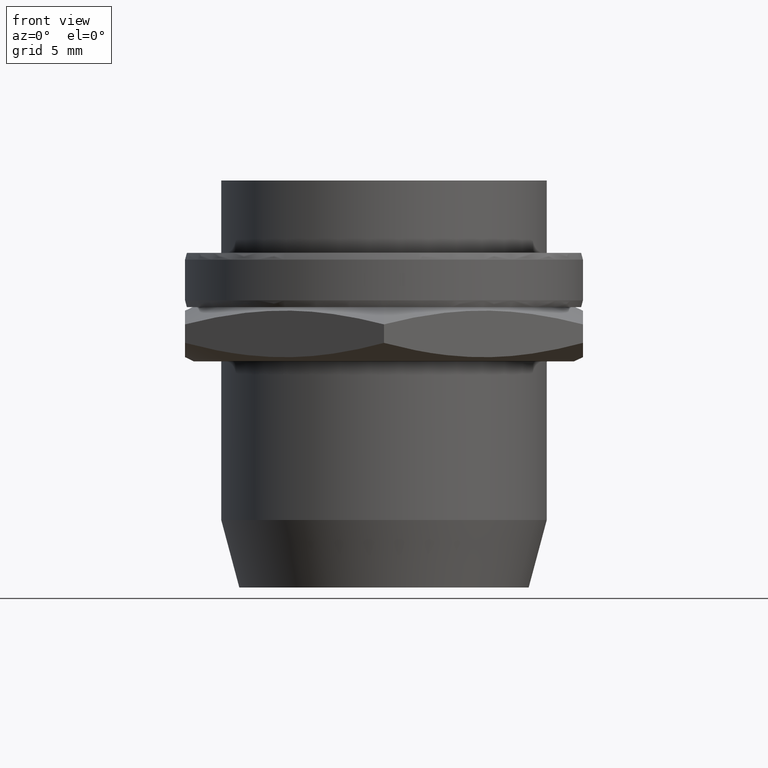
[diagram: clean part render]
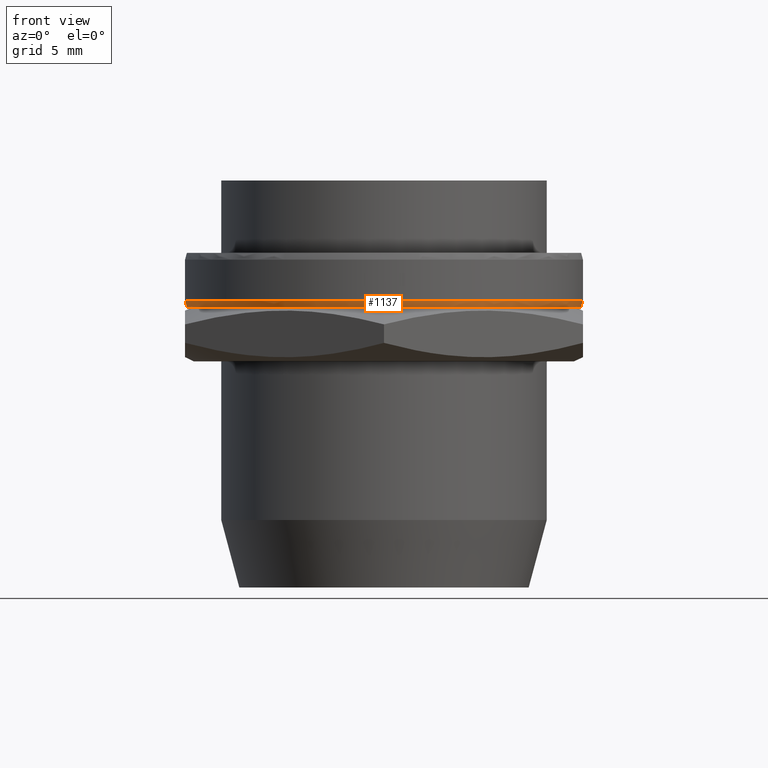
[diagram: same view with one face highlighted and labeled with its STEP entity id]
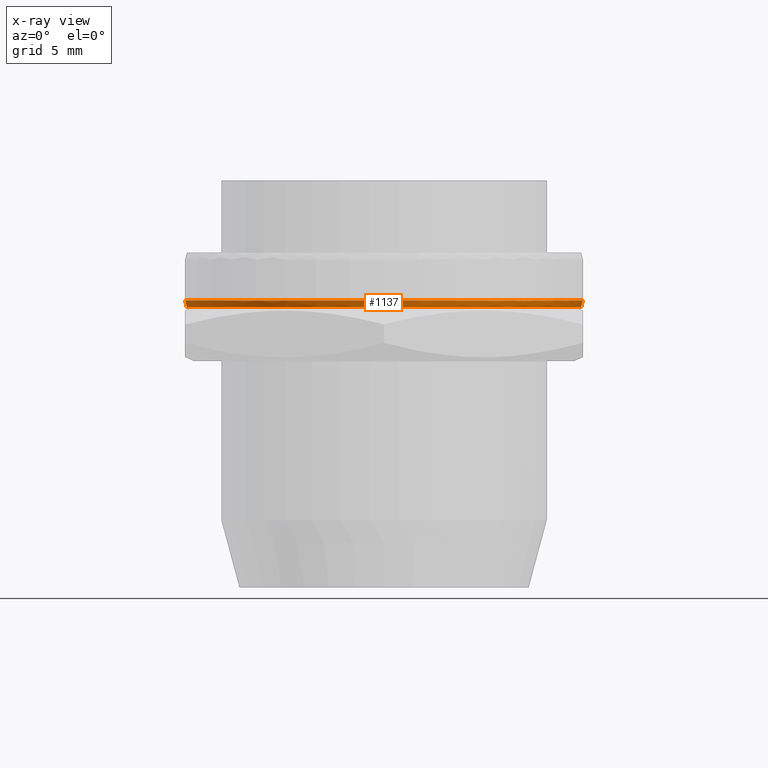
[diagram: x-ray of the same camera — body ghosted, the highlighted face saturated]
A machine part, front view. The second image highlights one B-rep face of the part: STEP entity #1137.
The next image is the same camera in x-ray: the body ghosted, the highlighted face saturated — about 0% of this face is hidden behind the body in this view.
In plain terms, the highlighted face is a freeform B-spline surface patch.
Its self-contained STEP definition (entity closure, byte-faithful):
#690=CARTESIAN_POINT('',(-10.899999998510339,0.0,15.499999999999993));
#691=VERTEX_POINT('',#690);
#692=CARTESIAN_POINT('',(10.899999998510339,0.0,15.499999999999993));
#693=VERTEX_POINT('',#692);
#694=CARTESIAN_POINT('',(0.0,0.0,15.499999999999993));
#695=DIRECTION('',(0.0,0.0,1.0));
#696=DIRECTION('',(1.0,0.0,0.0));
#697=AXIS2_PLACEMENT_3D('',#694,#695,#696);
#698=CIRCLE('',#697,10.899999998510339);
#699=EDGE_CURVE('',#691,#693,#698,.T.);
#701=CARTESIAN_POINT('',(0.0,0.0,15.499999999999993));
#702=DIRECTION('',(0.0,0.0,1.0));
#703=DIRECTION('',(1.0,0.0,0.0));
#704=AXIS2_PLACEMENT_3D('',#701,#702,#703);
#705=CIRCLE('',#704,10.899999998510339);
#706=EDGE_CURVE('',#693,#691,#705,.T.);
#738=CARTESIAN_POINT('',(11.000000000000455,0.0,15.873205086318078));
#739=VERTEX_POINT('',#738);
#746=CARTESIAN_POINT('',(-11.000000000000455,0.0,15.873205086318078));
#747=VERTEX_POINT('',#746);
#748=CARTESIAN_POINT('',(0.0,0.0,15.873205086318078));
#749=DIRECTION('',(0.0,0.0,1.0));
#750=DIRECTION('',(1.0,0.0,0.0));
#751=AXIS2_PLACEMENT_3D('',#748,#749,#750);
#752=CIRCLE('',#751,11.000000000000455);
#753=EDGE_CURVE('',#739,#747,#752,.T.);
#755=CARTESIAN_POINT('',(0.0,0.0,15.873205086318078));
#756=DIRECTION('',(0.0,0.0,1.0));
#757=DIRECTION('',(1.0,0.0,0.0));
#758=AXIS2_PLACEMENT_3D('',#755,#756,#757);
#759=CIRCLE('',#758,11.000000000000455);
#760=EDGE_CURVE('',#747,#739,#759,.T.);
#983=CARTESIAN_POINT('',(11.000000000000455,0.0,15.873205086318078));
#984=CARTESIAN_POINT('',(10.966666666170417,0.0,15.748803390878717));
#985=CARTESIAN_POINT('',(10.933333332340377,0.0,15.624401695439355));
#986=CARTESIAN_POINT('',(10.899999998510339,0.0,15.499999999999993));
#987=CARTESIAN_POINT('',(11.000000000000455,0.718792362416807,15.873205086318078));
#988=CARTESIAN_POINT('',(10.966666666170417,0.716614203710360,15.748803390878717));
#989=CARTESIAN_POINT('',(10.933333332340377,0.714436045003913,15.624401695439355));
#990=CARTESIAN_POINT('',(10.899999998510339,0.712257886297465,15.499999999999993));
#991=CARTESIAN_POINT('',(10.858183736377544,2.160360740825317,15.873205086318073));
#992=CARTESIAN_POINT('',(10.825280148807312,2.153814193028296,15.748803390878713));
#993=CARTESIAN_POINT('',(10.792376561237081,2.147267645231275,15.624401695439357));
#994=CARTESIAN_POINT('',(10.759472973666847,2.140721097434253,15.499999999999993));
#995=CARTESIAN_POINT('',(10.228185429293795,4.236510116551177,15.873205086318084));
#996=CARTESIAN_POINT('',(10.197190927531050,4.223672206915782,15.748803390878724));
#997=CARTESIAN_POINT('',(10.166196425768305,4.210834297280389,15.624401695439360));
#998=CARTESIAN_POINT('',(10.135201924005564,4.197996387644995,15.499999999999996));
#999=CARTESIAN_POINT('',(9.205123692194743,6.150705329066949,15.873205086318080));
#1000=CARTESIAN_POINT('',(9.177229377560316,6.132066827792044,15.748803390878717));
#1001=CARTESIAN_POINT('',(9.149335062925884,6.113428326517138,15.624401695439353));
#1002=CARTESIAN_POINT('',(9.121440748291457,6.094789825242229,15.499999999999995));
#1003=CARTESIAN_POINT('',(7.828314213897493,7.828303946476287,15.873205086318077));
#1004=CARTESIAN_POINT('',(7.804592049259467,7.804581812951657,15.748803390878713));
#1005=CARTESIAN_POINT('',(7.780869884621445,7.780859679427033,15.624401695439355));
#1006=CARTESIAN_POINT('',(7.757147719983419,7.757137545902406,15.499999999999989));
#1007=CARTESIAN_POINT('',(6.150667010529351,9.205126443341960,15.873205086318077));
#1008=CARTESIAN_POINT('',(6.132028625371227,9.177232120370727,15.748803390878715));
#1009=CARTESIAN_POINT('',(6.113390240213103,9.149337797399483,15.624401695439351));
#1010=CARTESIAN_POINT('',(6.094751855054977,9.121443474428247,15.499999999999989));
#1011=CARTESIAN_POINT('',(4.236653123280366,10.228184692126117,15.873205086318080));
#1012=CARTESIAN_POINT('',(4.223814780291241,10.197190192597214,15.748803390878717));
#1013=CARTESIAN_POINT('',(4.210976437302115,10.166195693068312,15.624401695439358));
#1014=CARTESIAN_POINT('',(4.198138094312991,10.135201193539409,15.499999999999995));
#1015=CARTESIAN_POINT('',(2.159827032446159,10.858183933901028,15.873205086318077));
#1016=CARTESIAN_POINT('',(2.153282101947280,10.825280345732242,15.748803390878717));
#1017=CARTESIAN_POINT('',(2.146737171448401,10.792376757563455,15.624401695439353));
#1018=CARTESIAN_POINT('',(2.140192240949522,10.759473169394665,15.499999999999993));
#1019=CARTESIAN_POINT('',(3.441691E-015,11.070908078885655,15.873205086318080));
#1020=CARTESIAN_POINT('',(3.663736E-015,11.037359872086094,15.748803390878717));
#1021=CARTESIAN_POINT('',(3.330669E-015,11.003811665286531,15.624401695439357));
#1022=CARTESIAN_POINT('',(3.663736E-015,10.970263458486976,15.499999999999996));
#1023=CARTESIAN_POINT('',(-2.159827032446162,10.858183750559091,15.873205086318077));
#1024=CARTESIAN_POINT('',(-2.153282101947284,10.825280162945887,15.748803390878717));
#1025=CARTESIAN_POINT('',(-2.146737171448405,10.792376575332680,15.624401695439353));
#1026=CARTESIAN_POINT('',(-2.140192240949526,10.759472987719473,15.499999999999989));
#1027=CARTESIAN_POINT('',(-4.236653123280359,10.228185425493859,15.873205086318080));
#1028=CARTESIAN_POINT('',(-4.223814780291233,10.197190923742632,15.748803390878718));
#1029=CARTESIAN_POINT('',(-4.210976437302110,10.166196421991401,15.624401695439357));
#1030=CARTESIAN_POINT('',(-4.198138094312984,10.135201920240172,15.499999999999996));
#1031=CARTESIAN_POINT('',(-6.150667010529352,9.205123693212933,15.873205086318077));
#1032=CARTESIAN_POINT('',(-6.132028625371227,9.177229378575417,15.748803390878713));
#1033=CARTESIAN_POINT('',(-6.113390240213100,9.149335063937903,15.624401695439355));
#1034=CARTESIAN_POINT('',(-6.094751855054975,9.121440749300390,15.499999999999991));
#1035=CARTESIAN_POINT('',(-7.828314213897492,7.828314213624674,15.873205086318078));
#1036=CARTESIAN_POINT('',(-7.804592049259467,7.804592048987479,15.748803390878717));
#1037=CARTESIAN_POINT('',(-7.780869884621446,7.780869884350279,15.624401695439353));
#1038=CARTESIAN_POINT('',(-7.757147719983419,7.757147719713080,15.499999999999991));
#1039=CARTESIAN_POINT('',(-9.205123692194745,6.150667010602430,15.873205086318080));
#1040=CARTESIAN_POINT('',(-9.177229377560318,6.132028625444082,15.748803390878717));
#1041=CARTESIAN_POINT('',(-9.149335062925887,6.113390240285739,15.624401695439357));
#1042=CARTESIAN_POINT('',(-9.121440748291459,6.094751855127392,15.499999999999996));
#1043=CARTESIAN_POINT('',(-10.228185429293788,4.236653123260878,15.873205086318075));
#1044=CARTESIAN_POINT('',(-10.197190927531043,4.223814780271813,15.748803390878713));
#1045=CARTESIAN_POINT('',(-10.166196425768300,4.210976437282746,15.624401695439349));
#1046=CARTESIAN_POINT('',(-10.135201924005557,4.198138094293681,15.499999999999989));
#1047=CARTESIAN_POINT('',(-10.858183736377550,2.159827032451033,15.873205086318082));
#1048=CARTESIAN_POINT('',(-10.825280148807320,2.153282101952138,15.748803390878722));
#1049=CARTESIAN_POINT('',(-10.792376561237084,2.146737171453245,15.624401695439360));
#1050=CARTESIAN_POINT('',(-10.759472973666856,2.140192240954352,15.499999999999996));
#1051=CARTESIAN_POINT('',(-11.070908131811905,1.110223E-016,15.873205086318077));
#1052=CARTESIAN_POINT('',(-11.037359924851962,3.330669E-016,15.748803390878713));
#1053=CARTESIAN_POINT('',(-11.003811717892020,2.220446E-016,15.624401695439351));
#1054=CARTESIAN_POINT('',(-10.970263510932080,5.551115E-016,15.499999999999991));
#1055=CARTESIAN_POINT('',(-10.858183736377550,-2.159827032451022,15.873205086318078));
#1056=CARTESIAN_POINT('',(-10.825280148807318,-2.153282101952129,15.748803390878717));
#1057=CARTESIAN_POINT('',(-10.792376561237084,-2.146737171453236,15.624401695439358));
#1058=CARTESIAN_POINT('',(-10.759472973666853,-2.140192240954343,15.499999999999995));
#1059=CARTESIAN_POINT('',(-10.228185429293786,-4.236653123260887,15.873205086318080));
#1060=CARTESIAN_POINT('',(-10.197190927531043,-4.223814780271821,15.748803390878720));
#1061=CARTESIAN_POINT('',(-10.166196425768300,-4.210976437282754,15.624401695439355));
#1062=CARTESIAN_POINT('',(-10.135201924005559,-4.198138094293687,15.499999999999993));
#1063=CARTESIAN_POINT('',(-9.205123692194745,-6.150667010602421,15.873205086318077));
#1064=CARTESIAN_POINT('',(-9.177229377560318,-6.132028625444074,15.748803390878717));
#1065=CARTESIAN_POINT('',(-9.149335062925889,-6.113390240285729,15.624401695439355));
#1066=CARTESIAN_POINT('',(-9.121440748291459,-6.094751855127384,15.499999999999995));
#1067=CARTESIAN_POINT('',(-7.828314213897496,-7.828314213624672,15.873205086318077));
#1068=CARTESIAN_POINT('',(-7.804592049259473,-7.804592048987475,15.748803390878711));
#1069=CARTESIAN_POINT('',(-7.780869884621446,-7.780869884350278,15.624401695439351));
#1070=CARTESIAN_POINT('',(-7.757147719983424,-7.757147719713080,15.499999999999989));
#1071=CARTESIAN_POINT('',(-6.150667010529350,-9.205123693212929,15.873205086318077));
#1072=CARTESIAN_POINT('',(-6.132028625371225,-9.177229378575415,15.748803390878717));
#1073=CARTESIAN_POINT('',(-6.113390240213102,-9.149335063937899,15.624401695439353));
#1074=CARTESIAN_POINT('',(-6.094751855054976,-9.121440749300385,15.499999999999989));
#1075=CARTESIAN_POINT('',(-4.236653123280366,-10.228185425493853,15.873205086318080));
#1076=CARTESIAN_POINT('',(-4.223814780291241,-10.197190923742630,15.748803390878717));
#1077=CARTESIAN_POINT('',(-4.210976437302117,-10.166196421991399,15.624401695439355));
#1078=CARTESIAN_POINT('',(-4.198138094312992,-10.135201920240172,15.499999999999993));
#1079=CARTESIAN_POINT('',(-2.159827032446163,-10.858183750559093,15.873205086318077));
#1080=CARTESIAN_POINT('',(-2.153282101947284,-10.825280162945884,15.748803390878717));
#1081=CARTESIAN_POINT('',(-2.146737171448406,-10.792376575332677,15.624401695439357));
#1082=CARTESIAN_POINT('',(-2.140192240949526,-10.759472987719469,15.499999999999995));
#1083=CARTESIAN_POINT('',(-1.776357E-015,-11.070908078885653,15.873205086318077));
#1084=CARTESIAN_POINT('',(-2.220446E-015,-11.037359872086093,15.748803390878717));
#1085=CARTESIAN_POINT('',(-1.998401E-015,-11.003811665286534,15.624401695439353));
#1086=CARTESIAN_POINT('',(-2.220446E-015,-10.970263458486976,15.499999999999993));
#1087=CARTESIAN_POINT('',(2.159827032446158,-10.858183933901028,15.873205086318077));
#1088=CARTESIAN_POINT('',(2.153282101947280,-10.825280345732242,15.748803390878717));
#1089=CARTESIAN_POINT('',(2.146737171448402,-10.792376757563453,15.624401695439357));
#1090=CARTESIAN_POINT('',(2.140192240949522,-10.759473169394667,15.499999999999991));
#1091=CARTESIAN_POINT('',(4.236653123280363,-10.228184692126115,15.873205086318078));
#1092=CARTESIAN_POINT('',(4.223814780291237,-10.197190192597214,15.748803390878717));
#1093=CARTESIAN_POINT('',(4.210976437302112,-10.166195693068310,15.624401695439355));
#1094=CARTESIAN_POINT('',(4.198138094312987,-10.135201193539407,15.499999999999995));
#1095=CARTESIAN_POINT('',(6.150667010529350,-9.205126443341962,15.873205086318080));
#1096=CARTESIAN_POINT('',(6.132028625371227,-9.177232120370723,15.748803390878720));
#1097=CARTESIAN_POINT('',(6.113390240213104,-9.149337797399484,15.624401695439355));
#1098=CARTESIAN_POINT('',(6.094751855054978,-9.121443474428249,15.499999999999993));
#1099=CARTESIAN_POINT('',(7.828314213897492,-7.828303946476292,15.873205086318077));
#1100=CARTESIAN_POINT('',(7.804592049259467,-7.804581812951666,15.748803390878717));
#1101=CARTESIAN_POINT('',(7.780869884621440,-7.780859679427039,15.624401695439355));
#1102=CARTESIAN_POINT('',(7.757147719983417,-7.757137545902411,15.499999999999995));
#1103=CARTESIAN_POINT('',(9.205123692194741,-6.150705329066946,15.873205086318075));
#1104=CARTESIAN_POINT('',(9.177229377560312,-6.132066827792039,15.748803390878711));
#1105=CARTESIAN_POINT('',(9.149335062925882,-6.113428326517132,15.624401695439351));
#1106=CARTESIAN_POINT('',(9.121440748291455,-6.094789825242226,15.499999999999989));
#1107=CARTESIAN_POINT('',(10.228185429293781,-4.236510116551190,15.873205086318078));
#1108=CARTESIAN_POINT('',(10.197190927531040,-4.223672206915796,15.748803390878718));
#1109=CARTESIAN_POINT('',(10.166196425768296,-4.210834297280402,15.624401695439353));
#1110=CARTESIAN_POINT('',(10.135201924005553,-4.197996387645009,15.499999999999989));
#1111=CARTESIAN_POINT('',(10.858183736377544,-2.160360740825312,15.873205086318077));
#1112=CARTESIAN_POINT('',(10.825280148807314,-2.153814193028290,15.748803390878713));
#1113=CARTESIAN_POINT('',(10.792376561237081,-2.147267645231270,15.624401695439355));
#1114=CARTESIAN_POINT('',(10.759472973666851,-2.140721097434247,15.499999999999993));
#1115=CARTESIAN_POINT('',(11.000000000000455,-0.718792362416811,15.873205086318078));
#1116=CARTESIAN_POINT('',(10.966666666170417,-0.716614203710363,15.748803390878717));
#1117=CARTESIAN_POINT('',(10.933333332340377,-0.714436045003916,15.624401695439355));
#1118=CARTESIAN_POINT('',(10.899999998510339,-0.712257886297469,15.499999999999993));
#1119=CARTESIAN_POINT('',(11.000000000000455,-2.694223E-015,15.873205086318078));
#1120=CARTESIAN_POINT('',(10.966666666170417,-2.686059E-015,15.748803390878717));
#1121=CARTESIAN_POINT('',(10.933333332340377,-2.677894E-015,15.624401695439355));
#1122=CARTESIAN_POINT('',(10.899999998510339,-2.669730E-015,15.499999999999993));
#1123=B_SPLINE_SURFACE_WITH_KNOTS('',3,3,((#983,#987,#991,#995,#999,#1003,#1007,#1011,#1015,#1019,#1023,#1027,#1031,#1035,#1039,#1043,#1047,#1051,#1055,#1059,#1063,#1067,#1071,#1075,#1079,#1083,#1087,#1091,#1095,#1099,#1103,#1107,#1111,#1115,#1119),(#984,#988,#992,#996,#1000,#1004,#1008,#1012,#1016,#1020,#1024,#1028,#1032,#1036,#1040,#1044,#1048,#1052,#1056,#1060,#1064,#1068,#1072,#1076,#1080,#1084,#1088,#1092,#1096,#1100,#1104,#1108,#1112,#1116,#1120),(#985,#989,#993,#997,#1001,#1005,#1009,#1013,#1017,#1021,#1025,#1029,#1033,#1037,#1041,#1045,#1049,#1053,#1057,#1061,#1065,#1069,#1073,#1077,#1081,#1085,#1089,#1093,#1097,#1101,#1105,#1109,#1113,#1117,#1121),(#986,#990,#994,#998,#1002,#1006,#1010,#1014,#1018,#1022,#1026,#1030,#1034,#1038,#1042,#1046,#1050,#1054,#1058,#1062,#1066,#1070,#1074,#1078,#1082,#1086,#1090,#1094,#1098,#1102,#1106,#1110,#1114,#1118,#1122)),.UNSPECIFIED.,.F.,.T.,.U.,(4,4),(4,1,1,1,1,1,1,1,1,1,1,1,1,1,1,1,1,1,1,1,1,1,1,1,1,1,1,1,1,1,1,1,4),(0.0,0.386370336273002),(0.0,2.146575373071409,4.293150746142819,6.439726119214228,8.586301492285639,10.732876865357047,12.879452238428456,15.026027611499867,17.172602984571277,19.319178357642684,21.465753730714098,23.612329103785502,25.758904476856912,27.905479849928327,30.052055222999734,32.198630596071141,34.345205969142555,36.491781342213969,38.638356715285369,40.784932088356783,42.931507461428197,45.078082834499604,47.224658207571004,49.371233580642418,51.517808953713832,53.664384326785246,55.810959699856660,57.957535072928060,60.104110445999474,62.250685819070888,64.397261192142295,66.543836565213695,68.690411938285109),.UNSPECIFIED.);
#1124=ORIENTED_EDGE('',*,*,#760,.F.);
#1125=ORIENTED_EDGE('',*,*,#753,.F.);
#1126=CARTESIAN_POINT('',(11.000000000000455,0.0,15.873205086318078));
#1127=DIRECTION('',(-0.258819045102515,0.0,-0.965925826289070));
#1128=VECTOR('',#1127,0.386370336273002);
#1129=LINE('',#1126,#1128);
#1130=EDGE_CURVE('',#739,#693,#1129,.T.);
#1131=ORIENTED_EDGE('',*,*,#1130,.T.);
#1132=ORIENTED_EDGE('',*,*,#706,.T.);
#1133=ORIENTED_EDGE('',*,*,#699,.T.);
#1134=ORIENTED_EDGE('',*,*,#1130,.F.);
#1135=EDGE_LOOP('',(#1124,#1125,#1131,#1132,#1133,#1134));
#1136=FACE_OUTER_BOUND('',#1135,.T.);
#1137=ADVANCED_FACE('',(#1136),#1123,.T.);